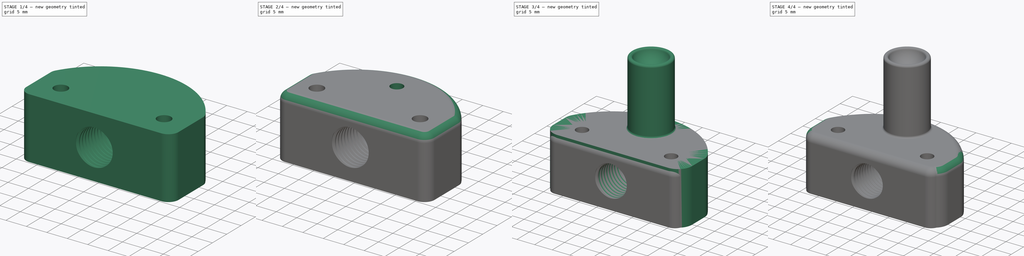
[diagram: build sequence overview — one tinted view per stage of 4, left to right]
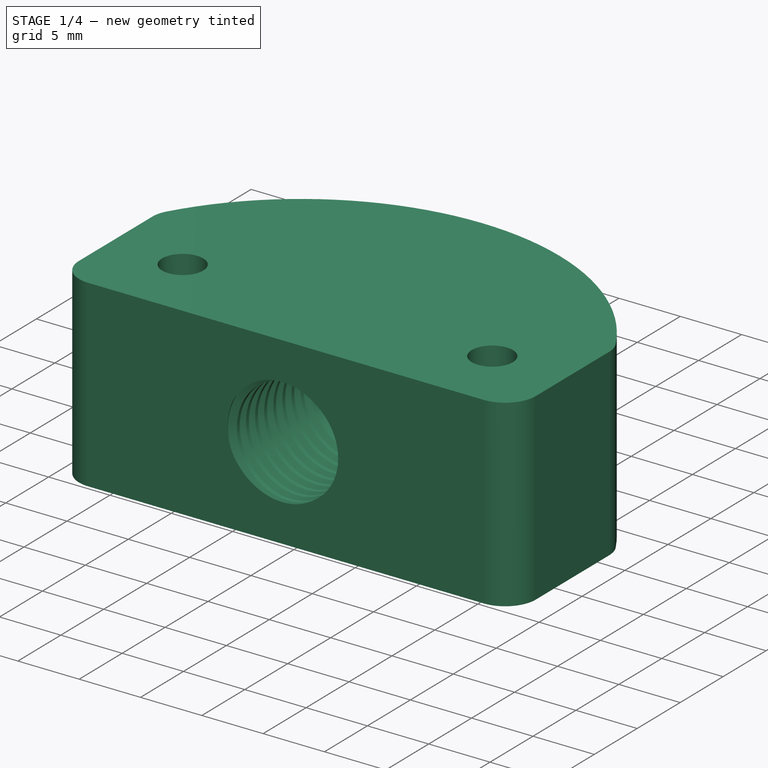
[diagram: stage 1 of 4 — iso view after this stage's code; geometry added in this stage tinted green]
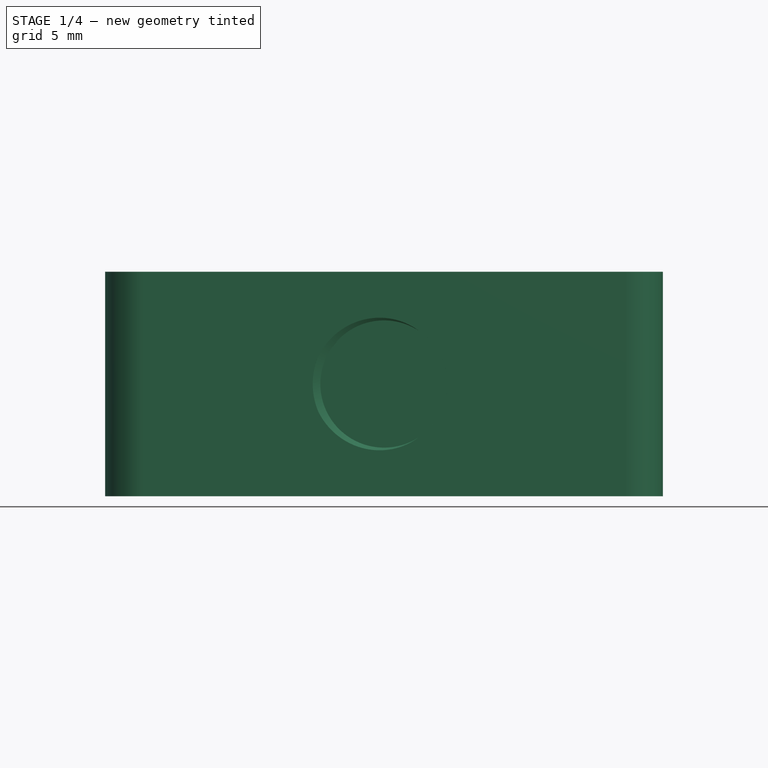
[diagram: stage 1 of 4 — front view after this stage's code; geometry added in this stage tinted green]
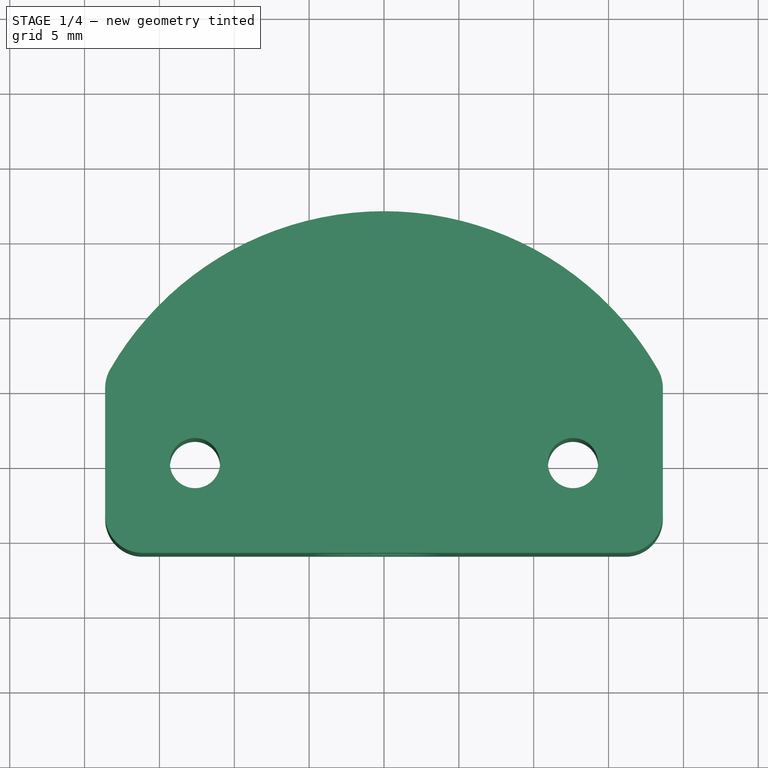
[diagram: stage 1 of 4 — top view after this stage's code; geometry added in this stage tinted green]
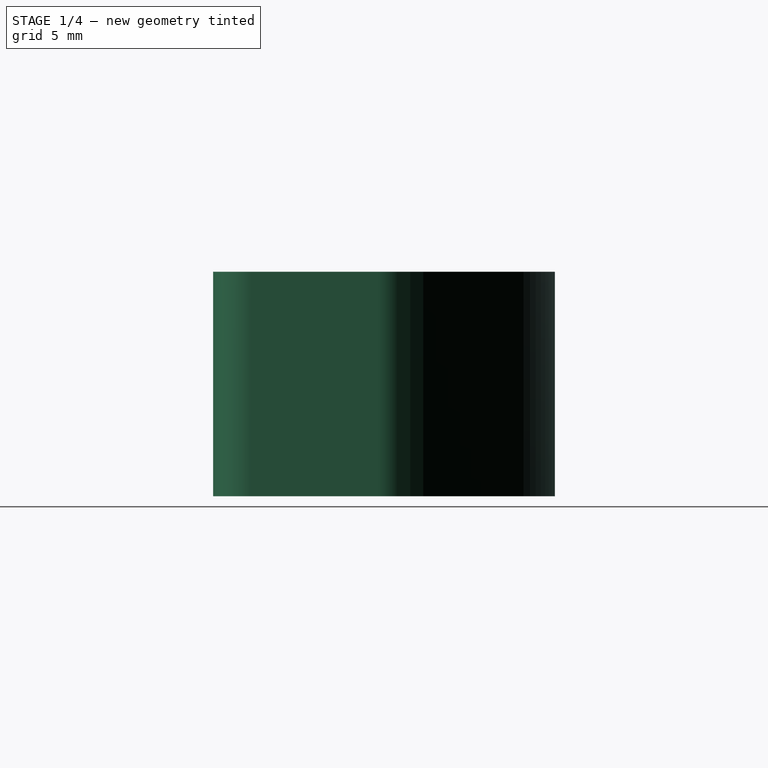
[diagram: stage 1 of 4 — right view after this stage's code; geometry added in this stage tinted green]
FCSTD DOCUMENT  (FreeCAD 0.20R28101 (Git))
Label: Treadmill_Sphere_Holder_9mm
License: All rights reserved
LicenseURL: http://en.wikipedia.org/wiki/All_rights_reserved
objects: Sketcher::SketchObject×8, PartDesign::Fillet×4, PartDesign::Body×3, PartDesign::Revolution×2, PartDesign::ShapeBinder×2, PartDesign::Pad×2, PartDesign::Hole×2, PartDesign::Pocket×2
note: 37 computed .brp shape members not serialized (recipe doc carries the construction recipe); baked Part::Feature solids carry a one-line shape summary decoded from their .brp

FEATURE [Sketcher::SketchObject] Sketch  label="Revolution tube cross section"
  FullyConstrained = true
  MapMode = 5
  Placement = pos=(0,0,0) rot=(1,0,0;1.5708rad)
  Support = -> [XZ_Plane]
  sketch-geometry (8):
    g0: LineSegment StartX=-0.9 StartY=0 StartZ=0 EndX=-0.9 EndY=14.9713 EndZ=0
    g1: LineSegment StartX=-0.9 StartY=0 StartZ=0 EndX=-5.91318 EndY=-1e-16 EndZ=0
    g2: LineSegment StartX=-5.5 StartY=0.492404 StartZ=0 EndX=-5.5 EndY=18 EndZ=0
    g3: ArcOfCircle CenterX=0 CenterY=19.3803 CenterZ=0 NormalX=0 NormalY=0 NormalZ=1 AngleXU=0 Radius=4.5 StartAngle=3.41593 EndAngle=4.51103
    g4: ArcOfCircle CenterX=0 CenterY=19.3803 CenterZ=0 NormalX=0 NormalY=0 NormalZ=1 AngleXU=0 Radius=4.5 StartAngle=3.41593 EndAngle=4.71239
    g5: ArcOfCircle CenterX=-4.90473 CenterY=18 CenterZ=0 NormalX=0 NormalY=0 NormalZ=1 AngleXU=0 Radius=0.595267 StartAngle=0.274335 EndAngle=3.14159
    g6: GeomPoint X=-5.5 Y=0 Z=0
    g7: ArcOfCircle CenterX=-6 CenterY=0.492404 CenterZ=0 NormalX=0 NormalY=0 NormalZ=1 AngleXU=0 Radius=0.5 StartAngle=4.88692 EndAngle=6.28319
  constraints (23):
    c: PointOnObject(g0,g-1)
    c: Vertical(g0)
    c: Coincident(g0,g1)
    c: PointOnObject(g6,g-1)
    c: Vertical(g2)
    c: PointOnObject(g3,g-2)
    c: Coincident(g3,g0)
    c: DistanceX(g6,g-1) = 5.5
    c: DistanceX(g0,g-1) = 0.9
    c: Coincident(g4,g3)
    c: PointOnObject(g4,g-2)
    c: Coincident(g3,g4)
    c: Tangent(g5,g3) = 1.5708
    c: Tangent(g5,g2) = 1.5708
    c: DistanceY(g0,g3) = 3.19
    c: DistanceY(g-1,g2) = 18
    c: PointOnObject(g6,g2)
    c: PointOnObject(g6,g1)
    c: Coincident(g7,g1)
    c: Tangent(g7,g2) = -1.5708
    c: Angle(g7) = 1.39626
    c: Diameter(g7) = 1
    c: Diameter(g3) = 9
FEATURE [PartDesign::Revolution] Revolution  label="Tube"
  Angle = 360
  Axis = (0,-2e-16,1)
  Base = (0,0,0)
  Placement = pos=(0,0,0) rot=(1,0,0;1.5708rad)
  Profile = -> Sketch
  ReferenceAxis = -> Sketch [V_Axis]
FEATURE [PartDesign::Body] Body  label="SphereTube"
  Group = -> [Sketch,Revolution]
  Origin = -> Origin
  Tip = -> Revolution
FEATURE [PartDesign::ShapeBinder] ReferenceRevolution
  Placement = pos=(0,0,0) rot=(1,0,0;1.5708rad)
  Support = -> [Revolution]
  TraceSupport = false
FEATURE [Sketcher::SketchObject] Sketch001  label="metricBaseSketch"
  ExternalGeometry = -> [ReferenceRevolution]
  FullyConstrained = true
  MapMode = 5
  Placement = pos=(0,0,0) rot=(1,0,0;3.14159rad)
  Support = -> [ReferenceRevolution]
  sketch-geometry (17):
    g0: LineSegment StartX=-18.625 StartY=4.8966 StartZ=0 EndX=-18.625 EndY=13.4132 EndZ=0
    g1: LineSegment StartX=-16.125 StartY=15.9132 StartZ=0 EndX=16.125 EndY=15.9132 EndZ=0
    g2: LineSegment StartX=18.625 StartY=13.4132 StartZ=0 EndX=18.625 EndY=4.8966 EndZ=0
    g3: ArcOfCircle CenterX=-9e-16 CenterY=14.2064 CenterZ=0 NormalX=0 NormalY=0 NormalZ=1 AngleXU=0 Radius=21.1195 StartAngle=3.66519 EndAngle=5.75959
    g4: ArcOfCircle CenterX=-16.125 CenterY=13.4132 CenterZ=0 NormalX=0 NormalY=0 NormalZ=1 AngleXU=0 Radius=2.5 StartAngle=1.5708 EndAngle=3.14159
    g5: ArcOfCircle CenterX=16.125 CenterY=13.4132 CenterZ=0 NormalX=0 NormalY=0 NormalZ=1 AngleXU=0 Radius=2.5 StartAngle=0 EndAngle=1.5708
    g6: ArcOfCircle CenterX=16.125 CenterY=4.8966 CenterZ=0 NormalX=0 NormalY=0 NormalZ=1 AngleXU=0 Radius=2.5 StartAngle=5.75959 EndAngle=6.28319
    g7: ArcOfCircle CenterX=-16.125 CenterY=4.8966 CenterZ=0 NormalX=0 NormalY=0 NormalZ=1 AngleXU=0 Radius=2.5 StartAngle=3.14159 EndAngle=3.66519
    g8: Circle CenterX=-12.625 CenterY=9.91318 CenterZ=0 NormalX=0 NormalY=0 NormalZ=1 AngleXU=0 Radius=1.675
    g9: Circle CenterX=12.625 CenterY=9.91318 CenterZ=0 NormalX=0 NormalY=0 NormalZ=1 AngleXU=0 Radius=1.675
    g10: GeomPoint X=-14.3 Y=9.91318 Z=0
    g11: GeomPoint X=14.3 Y=9.91318 Z=0
    g12: LineSegment StartX=-12.625 StartY=9.91318 StartZ=0 EndX=12.625 EndY=9.91318 EndZ=0
    g13: GeomPoint X=0 Y=-6.91318 Z=0
    g14: GeomPoint X=0 Y=-5.91318 Z=0
    g15: GeomPoint X=0 Y=15.9132 Z=0
    g16: GeomPoint X=0 Y=5.91318 Z=0
  constraints (38):
    c: Vertical(g0)
    c: Vertical(g2)
    c: Tangent(g1,g4) = 1.5708
    c: Tangent(g0,g4) = 1.5708
    c: Tangent(g1,g5) = 1.5708
    c: Tangent(g2,g5) = 1.5708
    c: Tangent(g3,g6) = -1.5708
    c: Tangent(g2,g6) = 1.5708
    c: Tangent(g3,g7) = -1.5708
    c: Tangent(g0,g7) = 1.5708
    c: Diameter(g4) = 5
    c: Equal(g4,g7)
    c: Equal(g7,g5)
    c: Symmetric(g9,g8,g-2)
    c: Equal(g8,g9)
    c: Diameter(g9) = 3.35
    c: PointOnObject(g10,g8)
    c: PointOnObject(g11,g9)
    c: Coincident(g12,g8)
    c: Coincident(g12,g9)
    c: PointOnObject(g11,g12)
    c: PointOnObject(g10,g12)
    c: DistanceX(g10,g11) = 28.6
    c: DistanceX(g0,g8) = 6
    c: DistanceY(g8,g1) = 6
    c: Symmetric(g1,g1,g-2)
    c: PointOnObject(g13,g3)
    c: PointOnObject(g13,g-2)
    c: PointOnObject(g14,g-3)
    c: PointOnObject(g14,g-2)
    c: DistanceY(g13,g14) = 1
    c: PointOnObject(g15,g1)
    c: PointOnObject(g15,g-2)
    c: PointOnObject(g16,g-3)
    c: PointOnObject(g16,g-2)
    c: DistanceY(g16,g15) = 10
    c: Symmetric(g3,g3,g-2)
    c: Angle(g3) = 2.0944
FEATURE [PartDesign::Pad] Pad  label="metricBase"
  Direction = (0,0,-1)
  Length = 15
  Length2 = 10
  Placement = pos=(0,0,0) rot=(1,0,0;1.5708rad)
  Profile = -> Sketch001
  ReferenceAxis = -> Sketch001 [N_Axis]
  Type = 0
FEATURE [Sketcher::SketchObject] Sketch002
  FullyConstrained = true
  MapMode = 5
  Placement = pos=(0,-15.9132,-1.8e-15) rot=(1,0,0;1.5708rad)
  Support = -> [Pad]
  sketch-geometry (1):
    g0: Circle CenterX=0 CenterY=-7.5 CenterZ=0 NormalX=0 NormalY=0 NormalZ=1 AngleXU=0 Radius=4.7625
  constraints (3):
    c: PointOnObject(g0,g-2)
    c: DistanceY(g0,g-1) = 7.5
    c: Diameter(g0) = 9.525
FEATURE [PartDesign::Hole] Hole  label="metricThread"
  BaseFeature = -> Pad
  CustomThreadClearance = 0
  Depth = 19
  DepthType = 0
  Diameter = 8.5
  DrillForDepth = false
  DrillPoint = 0
  DrillPointAngle = 118
  HoleCutCountersinkAngle = 90
  HoleCutCustomValues = false
  HoleCutDepth = 0
  HoleCutDiameter = 8.6
  HoleCutType = 0
  ModelThread = true
  Placement = pos=(0,0,0) rot=(1,0,0;1.5708rad)
  Profile = -> Sketch002
  Tapered = false
  TaperedAngle = 90
  ThreadClass = 0
  ThreadDepth = 9
  ThreadDepthType = 1
  ThreadDirection = 0
  ThreadFit = 0
  ThreadSize = 12
  ThreadType = 4
  Threaded = true
  UseCustomThreadClearance = false
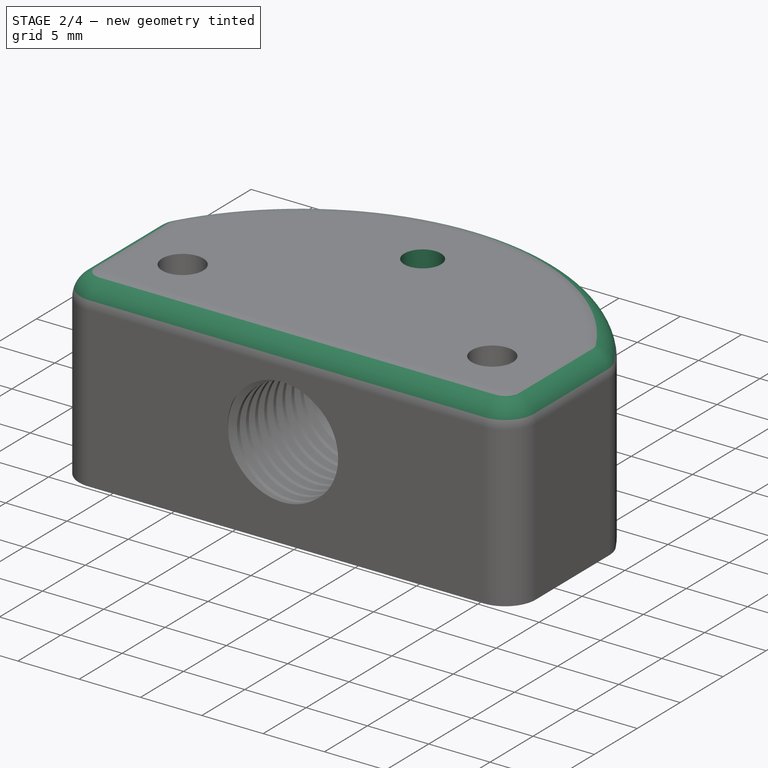
[diagram: stage 2 of 4 — iso view after this stage's code; geometry added in this stage tinted green]
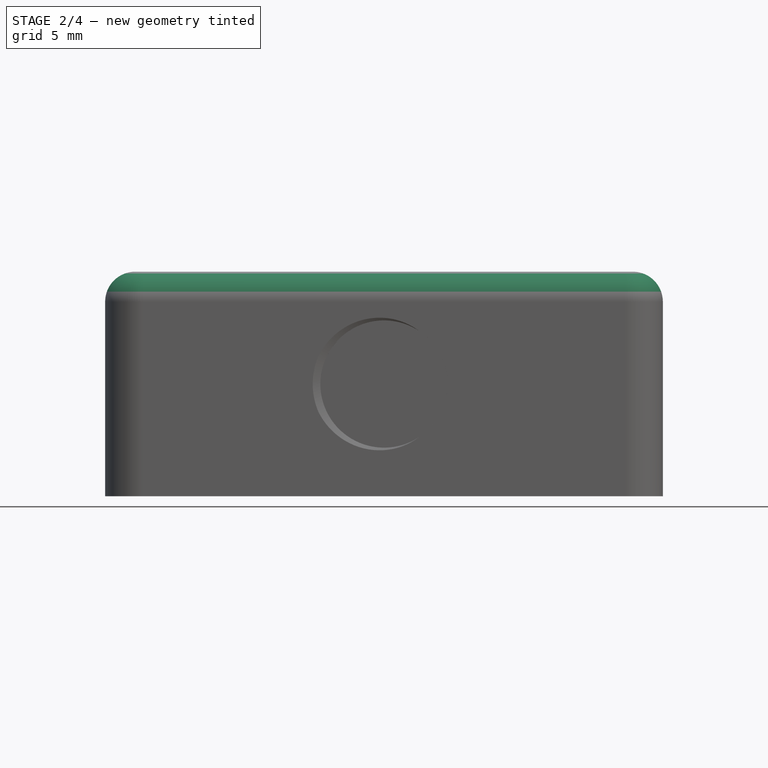
[diagram: stage 2 of 4 — front view after this stage's code; geometry added in this stage tinted green]
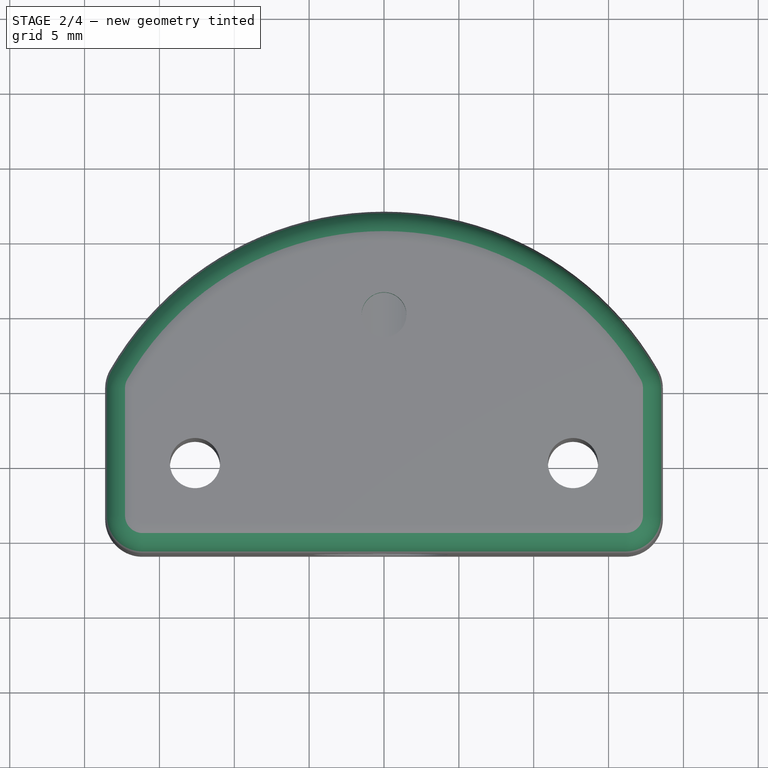
[diagram: stage 2 of 4 — top view after this stage's code; geometry added in this stage tinted green]
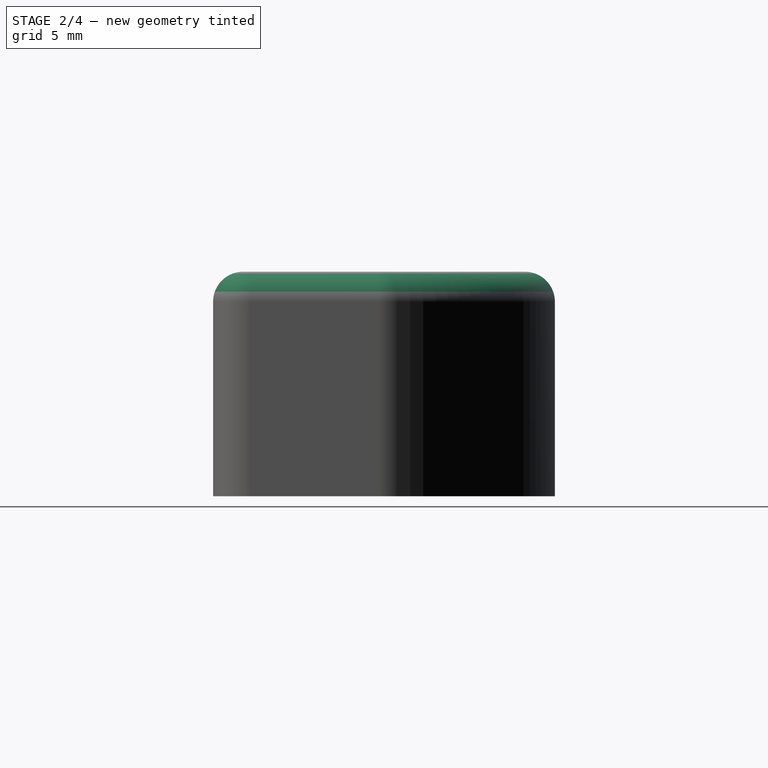
[diagram: stage 2 of 4 — right view after this stage's code; geometry added in this stage tinted green]
FEATURE [Sketcher::SketchObject] Sketch003
  FullyConstrained = true
  MapMode = 5
  Support = -> [XY_Plane001]
  sketch-geometry (1):
    g0: Circle CenterX=0 CenterY=0 CenterZ=0 NormalX=0 NormalY=0 NormalZ=1 AngleXU=0 Radius=1.5
  constraints (2):
    c: Diameter(g0) = 3
    c: Coincident(g0,g-1)
FEATURE [PartDesign::Pocket] Pocket  label="metricPocket"
  BaseFeature = -> Hole
  Direction = (0,0,-1)
  Length = 10
  Length2 = 5
  Placement = pos=(0,0,0) rot=(1,0,0;1.5708rad)
  Profile = -> Sketch003
  ReferenceAxis = -> Sketch003 [N_Axis]
  Type = 0
FEATURE [PartDesign::Fillet] Fillet  label="metricSmooth"
  Base = -> Pocket [Edge37,Edge38]
  BaseFeature = -> Pocket
  Placement = pos=(0,0,0) rot=(1,0,0;1.5708rad)
  Radius = 2
  SupportTransform = false
  UseAllEdges = false
FEATURE [PartDesign::Body] Body002  label="imperialBaseBody"
  Group = -> [ReferenceRevolution001,Sketch007,Pad001,Sketch006,Hole001,Sketch005,Pocket001,Fillet001,Fillet002]
  Origin = -> Origin002
  Tip = -> Fillet002
FEATURE [PartDesign::Fillet] Fillet003
  Base = -> Fillet [Edge13]
  BaseFeature = -> Fillet
  Placement = pos=(0,0,0) rot=(1,0,0;1.5708rad)
  Radius = 2
  SupportTransform = false
  UseAllEdges = false
FEATURE [PartDesign::Body] Body001  label="metricBaseBody"
  Group = -> [ReferenceRevolution,Sketch001,Pad,Sketch002,Hole,Sketch003,Pocket,Fillet,Revolution001,Fillet003]
  Origin = -> Origin001
  Tip = -> Fillet003
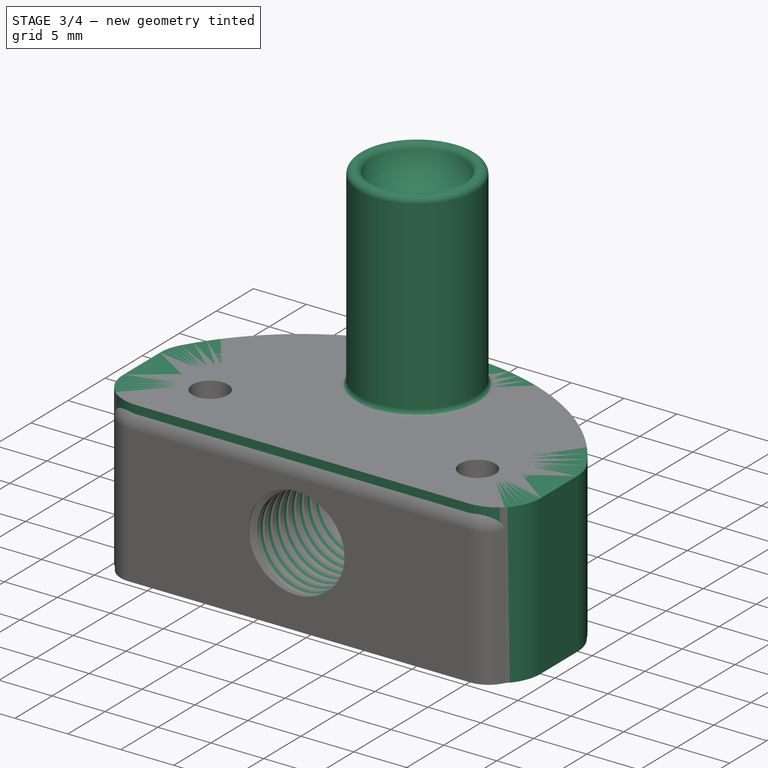
[diagram: stage 3 of 4 — iso view after this stage's code; geometry added in this stage tinted green]
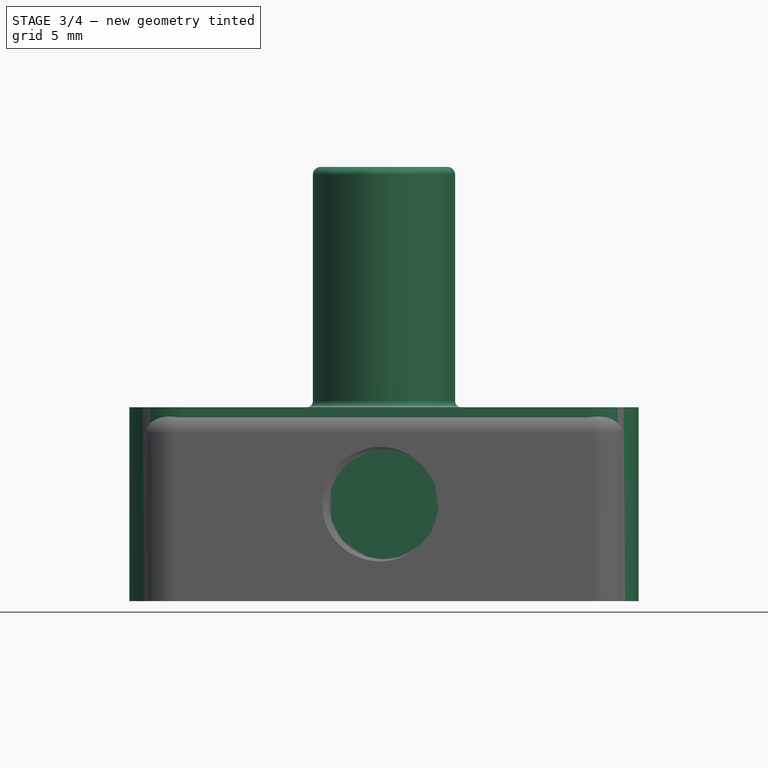
[diagram: stage 3 of 4 — front view after this stage's code; geometry added in this stage tinted green]
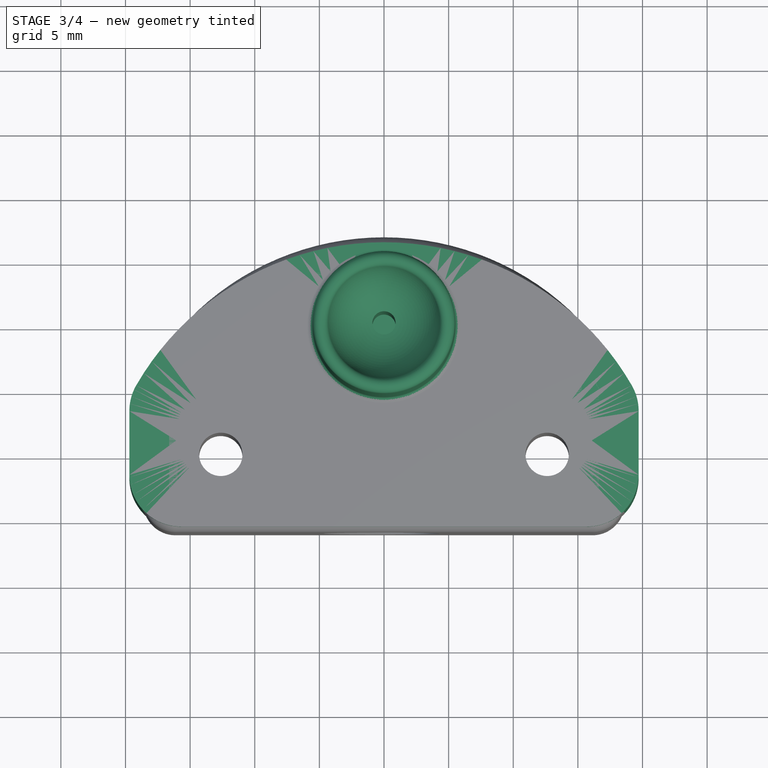
[diagram: stage 3 of 4 — top view after this stage's code; geometry added in this stage tinted green]
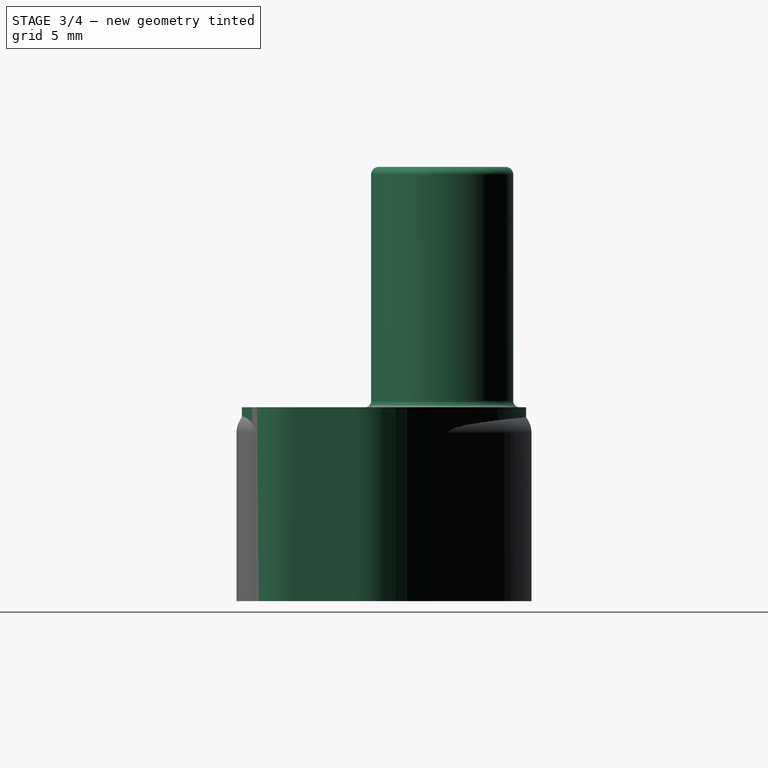
[diagram: stage 3 of 4 — right view after this stage's code; geometry added in this stage tinted green]
FEATURE [Sketcher::SketchObject] Sketch004  label="Revolution tube cross section001"
  FullyConstrained = true
  MapMode = 5
  Placement = pos=(0,0,0) rot=(1,0,0;1.5708rad)
  Support = -> [XZ_Plane002]
  sketch-geometry (8):
    g0: LineSegment StartX=-0.9 StartY=0 StartZ=0 EndX=-0.9 EndY=14.9713 EndZ=0
    g1: LineSegment StartX=-0.9 StartY=0 StartZ=0 EndX=-5.91318 EndY=-1e-16 EndZ=0
    g2: LineSegment StartX=-5.5 StartY=0.492404 StartZ=0 EndX=-5.5 EndY=18 EndZ=0
    g3: ArcOfCircle CenterX=0 CenterY=19.3803 CenterZ=0 NormalX=0 NormalY=0 NormalZ=1 AngleXU=0 Radius=4.5 StartAngle=3.41593 EndAngle=4.51103
    g4: ArcOfCircle CenterX=0 CenterY=19.3803 CenterZ=0 NormalX=0 NormalY=0 NormalZ=1 AngleXU=0 Radius=4.5 StartAngle=3.41593 EndAngle=4.71239
    g5: ArcOfCircle CenterX=-4.90473 CenterY=18 CenterZ=0 NormalX=0 NormalY=0 NormalZ=1 AngleXU=0 Radius=0.595267 StartAngle=0.274335 EndAngle=3.14159
    g6: GeomPoint X=-5.5 Y=0 Z=0
    g7: ArcOfCircle CenterX=-6 CenterY=0.492404 CenterZ=0 NormalX=0 NormalY=0 NormalZ=1 AngleXU=0 Radius=0.5 StartAngle=4.88692 EndAngle=6.28319
  constraints (23):
    c: PointOnObject(g0,g-1)
    c: Vertical(g0)
    c: Coincident(g0,g1)
    c: PointOnObject(g6,g-1)
    c: Vertical(g2)
    c: PointOnObject(g3,g-2)
    c: Coincident(g3,g0)
    c: DistanceX(g6,g-1) = 5.5
    c: DistanceX(g0,g-1) = 0.9
    c: Coincident(g4,g3)
    c: PointOnObject(g4,g-2)
    c: Coincident(g3,g4)
    c: Tangent(g5,g3) = 1.5708
    c: Tangent(g5,g2) = 1.5708
    c: DistanceY(g0,g3) = 3.19
    c: DistanceY(g-1,g2) = 18
    c: PointOnObject(g6,g2)
    c: PointOnObject(g6,g1)
    c: Coincident(g7,g1)
    c: Tangent(g7,g2) = -1.5708
    c: Angle(g7) = 1.39626
    c: Diameter(g7) = 1
    c: Diameter(g3) = 9
FEATURE [PartDesign::Revolution] Revolution001  label="Tube001"
  Angle = 360
  Axis = (0,-2e-16,1)
  Base = (0,0,0)
  BaseFeature = -> Fillet
  Placement = pos=(0,0,0) rot=(1,0,0;1.5708rad)
  Profile = -> Sketch004
  ReferenceAxis = -> Sketch004 [V_Axis]
FEATURE [Sketcher::SketchObject] Sketch005
  FullyConstrained = true
  MapMode = 5
  Support = -> [XY_Plane002]
  sketch-geometry (1):
    g0: Circle CenterX=0 CenterY=0 CenterZ=0 NormalX=0 NormalY=0 NormalZ=1 AngleXU=0 Radius=1.5
  constraints (2):
    c: Diameter(g0) = 3
    c: Coincident(g0,g-1)
FEATURE [PartDesign::ShapeBinder] ReferenceRevolution001
  Placement = pos=(0,0,0) rot=(1,0,0;1.5708rad)
  Support = -> [Revolution001]
  TraceSupport = false
FEATURE [Sketcher::SketchObject] Sketch007  label="imperialBaseSketch"
  ExternalGeometry = -> [ReferenceRevolution001]
  FullyConstrained = true
  MapMode = 5
  Placement = pos=(0,0,0) rot=(1,0,0;3.14159rad)
  Support = -> [Revolution]
  sketch-geometry (16):
    g0: LineSegment StartX=-19.7 StartY=6.5644 StartZ=0 EndX=-19.7 EndY=11.5 EndZ=0
    g1: LineSegment StartX=-15.7 StartY=15.5 StartZ=0 EndX=15.7 EndY=15.5 EndZ=0
    g2: LineSegment StartX=19.7 StartY=11.5 StartZ=0 EndX=19.7 EndY=6.5644 EndZ=0
    g3: ArcOfCircle CenterX=-6e-16 CenterY=15.6288 CenterZ=0 NormalX=0 NormalY=0 NormalZ=1 AngleXU=0 Radius=22.1288 StartAngle=3.66519 EndAngle=5.75959
    g4: ArcOfCircle CenterX=-15.7 CenterY=11.5 CenterZ=0 NormalX=0 NormalY=0 NormalZ=1 AngleXU=0 Radius=4 StartAngle=1.5708 EndAngle=3.14159
    g5: ArcOfCircle CenterX=15.7 CenterY=11.5 CenterZ=0 NormalX=0 NormalY=0 NormalZ=1 AngleXU=0 Radius=4 StartAngle=0 EndAngle=1.5708
    g6: ArcOfCircle CenterX=15.7 CenterY=6.5644 CenterZ=0 NormalX=0 NormalY=0 NormalZ=1 AngleXU=0 Radius=4 StartAngle=5.75959 EndAngle=6.28319
    g7: ArcOfCircle CenterX=-15.7 CenterY=6.5644 CenterZ=0 NormalX=0 NormalY=0 NormalZ=1 AngleXU=0 Radius=4 StartAngle=3.14159 EndAngle=3.66519
    g8: Circle CenterX=-12.7 CenterY=8.5 CenterZ=0 NormalX=0 NormalY=0 NormalZ=1 AngleXU=0 Radius=3.38865
    g9: Circle CenterX=12.7 CenterY=8.5 CenterZ=0 NormalX=0 NormalY=0 NormalZ=1 AngleXU=0 Radius=3.38865
    g10: GeomPoint X=-16.0887 Y=8.5 Z=0
    g11: GeomPoint X=16.0887 Y=8.5 Z=0
    g12: LineSegment StartX=-12.7 StartY=8.5 StartZ=0 EndX=12.7 EndY=8.5 EndZ=0
    g13: GeomPoint X=0 Y=-6.5 Z=0
    g14: GeomPoint X=0 Y=15.5 Z=0
    g15: GeomPoint X=0 Y=0 Z=0
  constraints (35):
    c: Vertical(g0)
    c: Vertical(g2)
    c: Tangent(g1,g4) = 1.5708
    c: Tangent(g0,g4) = 1.5708
    c: Tangent(g1,g5) = 1.5708
    c: Tangent(g2,g5) = 1.5708
    c: Tangent(g3,g6) = -1.5708
    c: Tangent(g2,g6) = 1.5708
    c: Tangent(g3,g7) = -1.5708
    c: Tangent(g0,g7) = 1.5708
    c: Diameter(g4) = 8
    c: Equal(g4,g7)
    c: Equal(g7,g5)
    c: Symmetric(g9,g8,g-2)
    c: Equal(g8,g9)
    c: Diameter(g9) = 6.7773
    c: PointOnObject(g10,g8)
    c: PointOnObject(g11,g9)
    c: Coincident(g12,g8)
    c: Coincident(g12,g9)
    c: PointOnObject(g11,g12)
    c: PointOnObject(g10,g12)
    c: DistanceX(g0,g8) = 7
    c: DistanceY(g8,g1) = 7
    c: Symmetric(g1,g1,g-2)
    c: PointOnObject(g13,g3)
    c: PointOnObject(g13,g-2)
    c: PointOnObject(g14,g1)
    c: PointOnObject(g14,g-2)
    c: Symmetric(g3,g3,g-2)
    c: Angle(g3) = 2.0944
    c: Coincident(g15,g-1)
    c: DistanceY(g15,g14) = 15.5
    c: DistanceY(g13,g15) = 6.5
    c: DistanceX(g8,g9) = 25.4
FEATURE [PartDesign::Pad] Pad001  label="imperialBase"
  Direction = (0,0,-1)
  Length = 15
  Length2 = 10
  Placement = pos=(0,0,0) rot=(1,0,0;1.5708rad)
  Profile = -> Sketch007
  ReferenceAxis = -> Sketch007 [N_Axis]
  Type = 0
FEATURE [Sketcher::SketchObject] Sketch006
  FullyConstrained = true
  MapMode = 5
  Placement = pos=(0,-15.5,-1.7e-15) rot=(1,0,0;1.5708rad)
  Support = -> [Pad001]
  sketch-geometry (1):
    g0: Circle CenterX=0 CenterY=-7.5 CenterZ=0 NormalX=0 NormalY=0 NormalZ=1 AngleXU=0 Radius=4.7625
  constraints (3):
    c: PointOnObject(g0,g-2)
    c: DistanceY(g0,g-1) = 7.5
    c: Diameter(g0) = 9.525
FEATURE [PartDesign::Hole] Hole001  label="imperialThread"
  BaseFeature = -> Pad001
  CustomThreadClearance = 0
  Depth = 18
  DepthType = 0
  Diameter = 8.5
  DrillForDepth = false
  DrillPoint = 0
  DrillPointAngle = 118
  HoleCutCountersinkAngle = 90
  HoleCutCustomValues = false
  HoleCutDepth = 0
  HoleCutDiameter = 8.6
  HoleCutType = 0
  ModelThread = true
  Placement = pos=(0,0,0) rot=(1,0,0;1.5708rad)
  Profile = -> Sketch006
  Tapered = false
  TaperedAngle = 90
  ThreadClass = 0
  ThreadDepth = 9
  ThreadDepthType = 1
  ThreadDirection = 0
  ThreadFit = 0
  ThreadSize = 12
  ThreadType = 4
  Threaded = true
  UseCustomThreadClearance = false
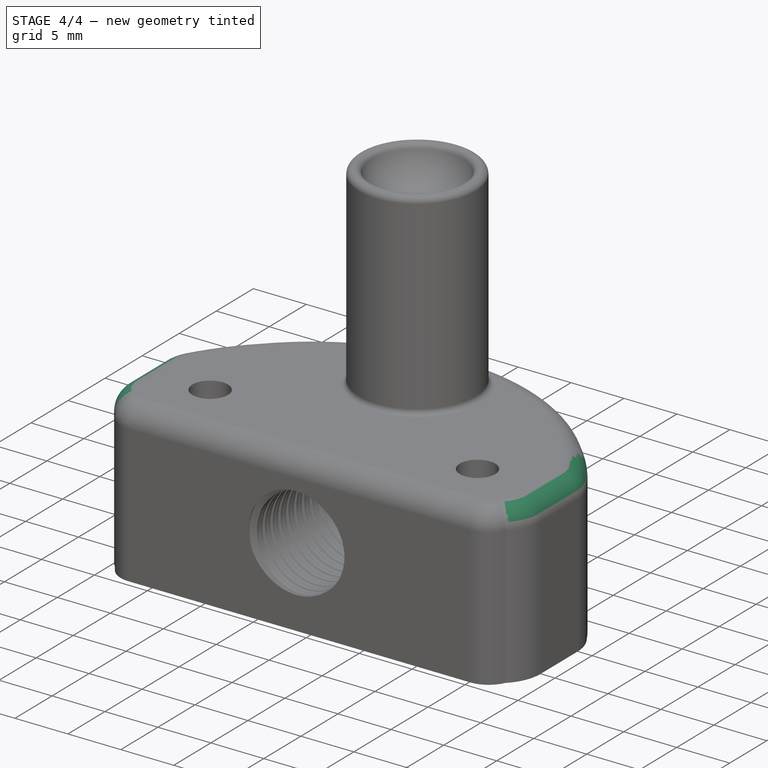
[diagram: stage 4 of 4 — iso view after this stage's code; geometry added in this stage tinted green]
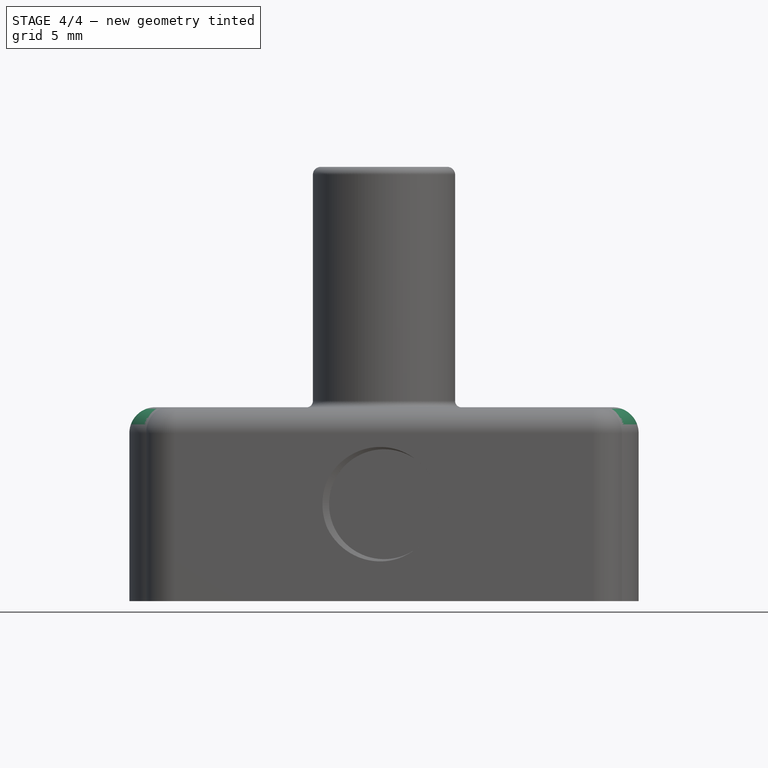
[diagram: stage 4 of 4 — front view after this stage's code; geometry added in this stage tinted green]
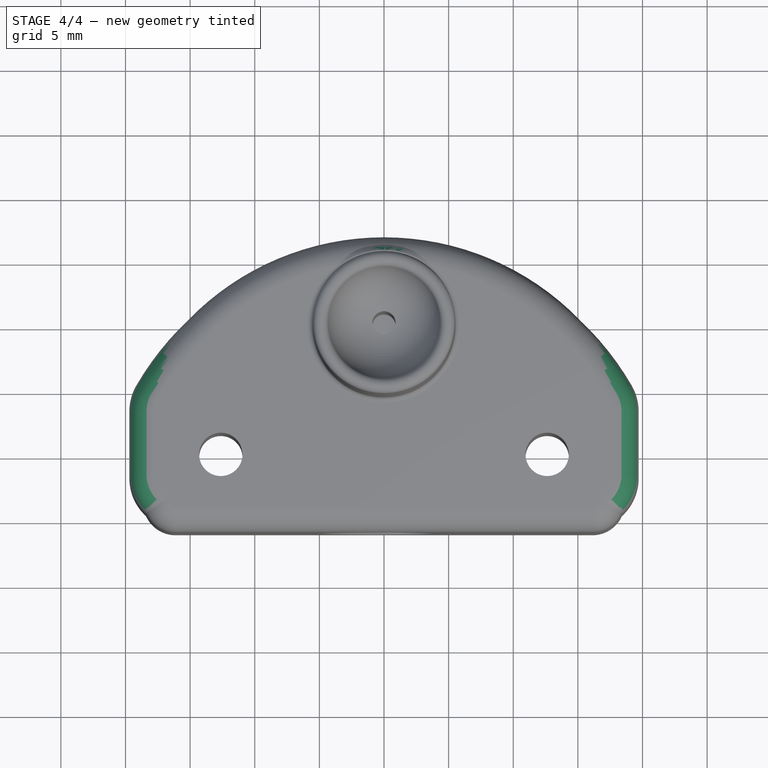
[diagram: stage 4 of 4 — top view after this stage's code; geometry added in this stage tinted green]
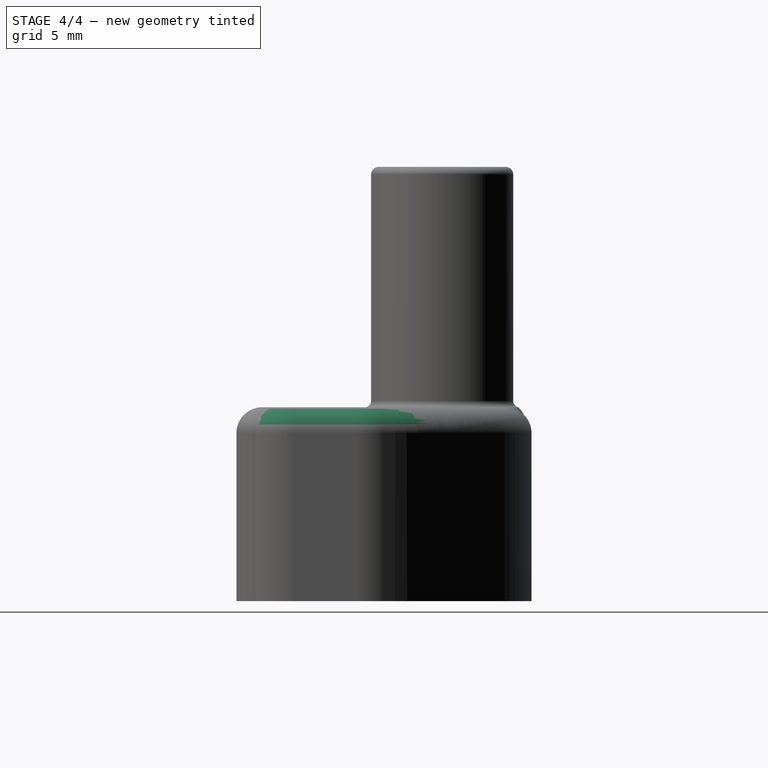
[diagram: stage 4 of 4 — right view after this stage's code; geometry added in this stage tinted green]
FEATURE [PartDesign::Pocket] Pocket001  label="imperialPocket"
  BaseFeature = -> Hole001
  Direction = (0,0,-1)
  Length = 10
  Length2 = 5
  Placement = pos=(0,0,0) rot=(1,0,0;1.5708rad)
  Profile = -> Sketch005
  ReferenceAxis = -> Sketch005 [N_Axis]
  Type = 0
FEATURE [PartDesign::Fillet] Fillet001
  Base = -> Pocket001 [Edge99]
  BaseFeature = -> Pocket001
  Placement = pos=(0,0,0) rot=(1,0,0;1.5708rad)
  Radius = 2
  SupportTransform = false
  UseAllEdges = false
FEATURE [PartDesign::Fillet] Fillet002
  Base = -> Fillet001 [Edge80]
  BaseFeature = -> Fillet001
  Placement = pos=(0,0,0) rot=(1,0,0;1.5708rad)
  Radius = 2
  SupportTransform = false
  UseAllEdges = false
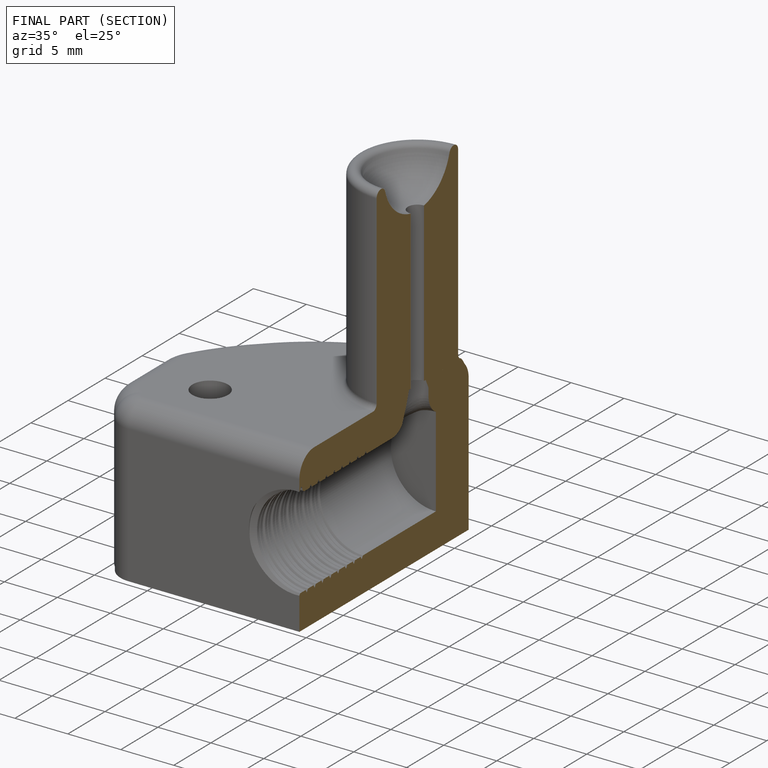
[diagram: finished part — half-section view (interior)]
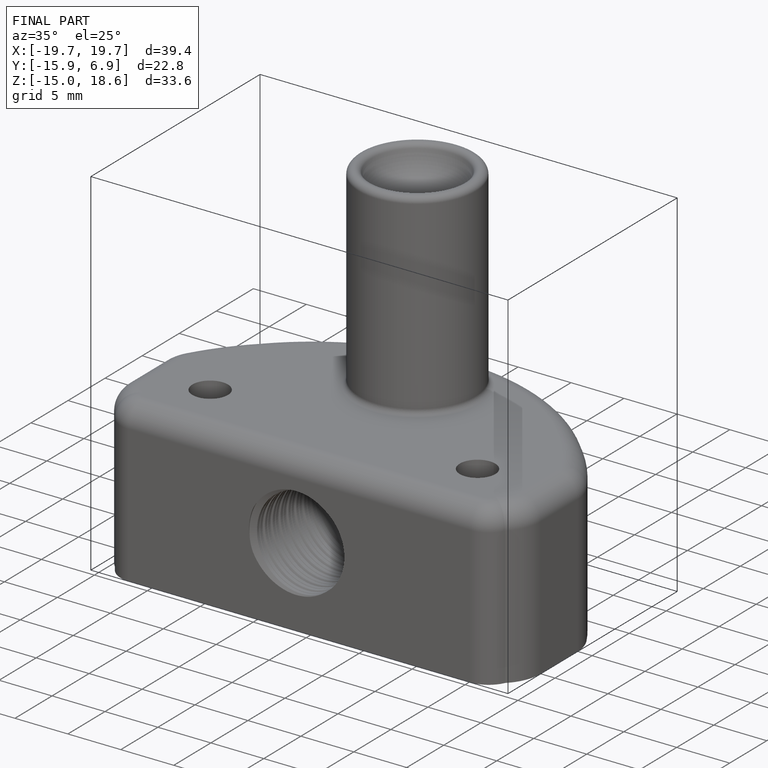
[diagram: finished part — iso view with bounding-box wireframe]
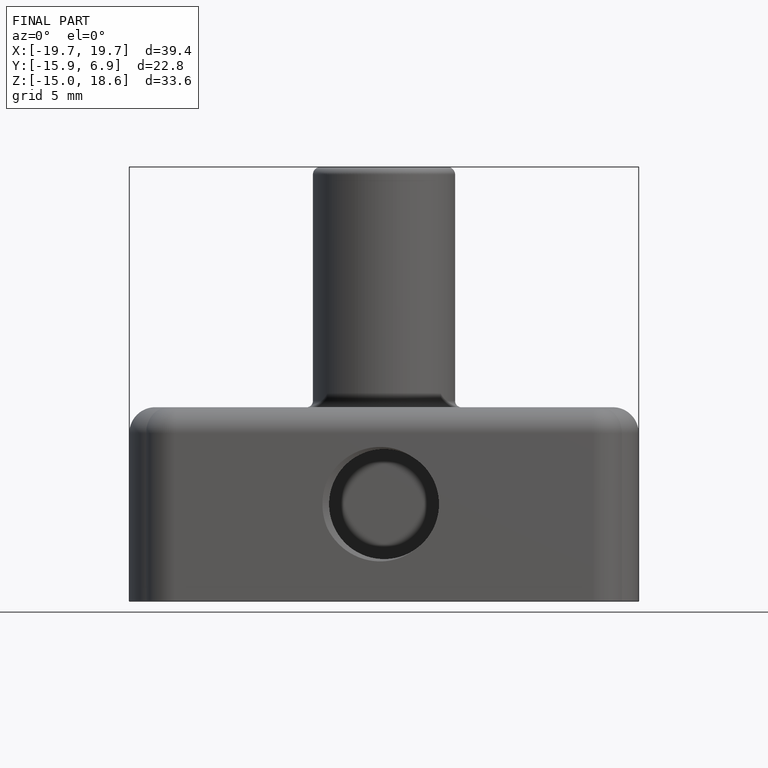
[diagram: finished part — front view with bounding-box wireframe]
